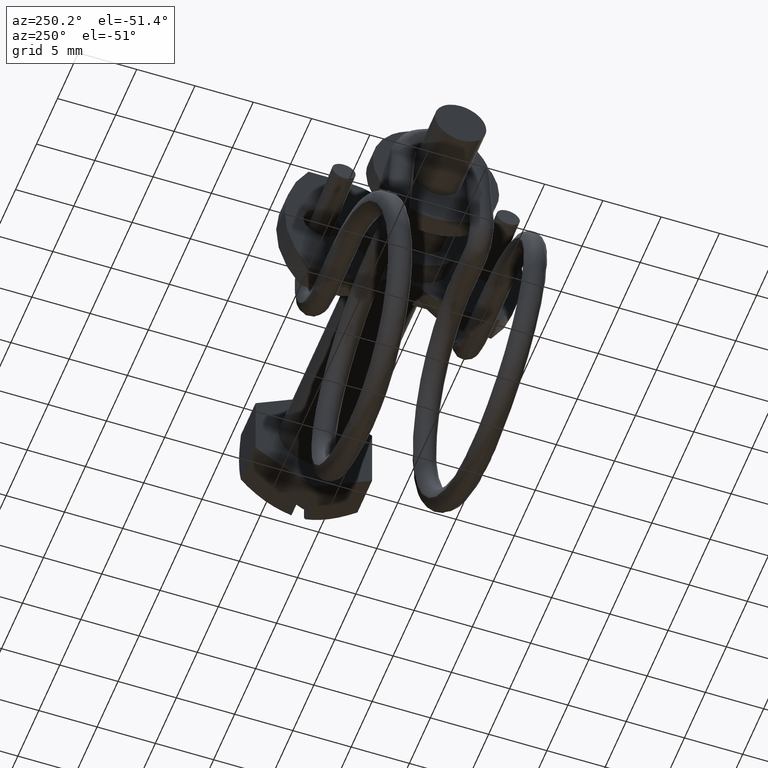
[diagram: clean part render]
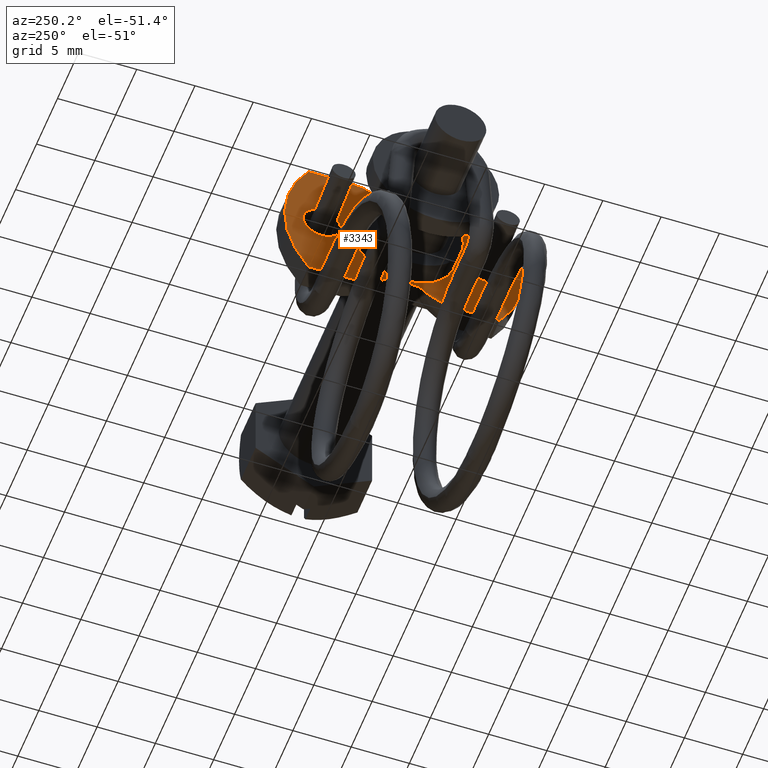
[diagram: same view with one face highlighted and labeled with its STEP entity id]
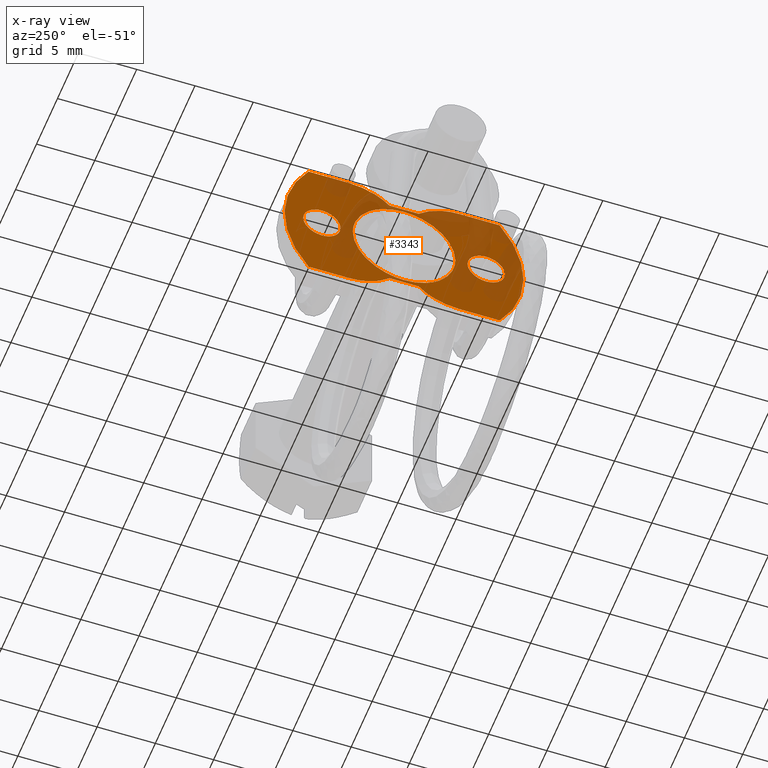
[diagram: x-ray of the same camera — body ghosted, the highlighted face saturated]
A machine part, auxiliary view. The second image highlights one B-rep face of the part: STEP entity #3343.
The next image is the same camera in x-ray: the body ghosted, the highlighted face saturated — about 42% of this face is hidden behind the body in this view.
In plain terms, the highlighted face is a freeform B-spline surface patch.
Its self-contained STEP definition (entity closure, byte-faithful):
#1898=CARTESIAN_POINT('',(-21.499999999993651,3.028760035763291,3.191647107271392));
#1899=VERTEX_POINT('',#1898);
#1905=CARTESIAN_POINT('',(-21.499999999993651,4.399999999990440,-0.000000631922418));
#1906=VERTEX_POINT('',#1905);
#1907=CARTESIAN_POINT('',(-21.499999999993651,3.028760035763291,3.191647107271392));
#1908=CARTESIAN_POINT('',(-21.499999999993658,3.231144374039922,2.999628103542814));
#1909=CARTESIAN_POINT('',(-21.499999999993630,3.629886403084383,2.541715071496983));
#1910=CARTESIAN_POINT('',(-21.499999999993669,4.082483317857596,1.733486091462298));
#1911=CARTESIAN_POINT('',(-21.499999999993630,4.345989014751261,0.855538412882844));
#1912=CARTESIAN_POINT('',(-21.499999999993712,4.400021167596801,0.269679902594492));
#1913=CARTESIAN_POINT('',(-21.499999999993651,4.399999999990440,-0.000000631922418));
#1914=B_SPLINE_CURVE_WITH_KNOTS('',3,(#1907,#1908,#1909,#1910,#1911,#1912,#1913),.UNSPECIFIED.,.F.,.U.,(4,1,1,1,4),(7.061145E-009,0.836941257166106,1.813365054003239,2.761906942217631,3.570950183323700),.UNSPECIFIED.);
#1915=EDGE_CURVE('',#1899,#1906,#1914,.T.);
#1917=CARTESIAN_POINT('',(-21.499999999993651,0.0,-4.399999999990485));
#1918=VERTEX_POINT('',#1917);
#1919=CARTESIAN_POINT('',(-21.499999999993651,4.399999999990440,-0.000000631922418));
#1920=CARTESIAN_POINT('',(-21.499999999993609,4.400064265808273,-0.323980634681141));
#1921=CARTESIAN_POINT('',(-21.499999999993658,4.338082211598675,-0.881912632195506));
#1922=CARTESIAN_POINT('',(-21.499999999993669,4.118833041719807,-1.589000091697338));
#1923=CARTESIAN_POINT('',(-21.499999999993609,3.841267555268010,-2.175847566948655));
#1924=CARTESIAN_POINT('',(-21.499999999993651,3.453671949586131,-2.763767000918469));
#1925=CARTESIAN_POINT('',(-21.499999999993729,2.929897138989269,-3.313894707756234));
#1926=CARTESIAN_POINT('',(-21.499999999993580,2.274308231325987,-3.793902882237972));
#1927=CARTESIAN_POINT('',(-21.499999999993751,1.607937395023837,-4.119140912803093));
#1928=CARTESIAN_POINT('',(-21.499999999993740,0.827920694959569,-4.345319868044837));
#1929=CARTESIAN_POINT('',(-21.499999999993459,0.305980779780192,-4.400049938494714));
#1930=CARTESIAN_POINT('',(-21.499999999993651,0.0,-4.399999999990485));
#1931=B_SPLINE_CURVE_WITH_KNOTS('',3,(#1919,#1920,#1921,#1922,#1923,#1924,#1925,#1926,#1927,#1928,#1929,#1930),.UNSPECIFIED.,.F.,.U.,(4,1,1,1,1,1,1,1,1,4),(5.143054E-009,0.971929552997772,1.673889898674869,2.213857444963700,2.915810668343717,3.779751093421619,4.481702296178790,5.345651141131864,5.993610477324595,6.911546848471422),.UNSPECIFIED.);
#1932=EDGE_CURVE('',#1906,#1918,#1931,.T.);
#1934=CARTESIAN_POINT('',(-21.499999999993651,-3.028760035763307,-3.191647107271410));
#1935=VERTEX_POINT('',#1934);
#1936=CARTESIAN_POINT('',(-21.499999999993651,0.0,-4.399999999990485));
#1937=CARTESIAN_POINT('',(-21.499999999993651,-0.365386089976504,-4.400096530133643));
#1938=CARTESIAN_POINT('',(-21.499999999993609,-0.939488540594578,-4.328049485103051));
#1939=CARTESIAN_POINT('',(-21.499999999993712,-1.717612933337087,-4.069915601996796));
#1940=CARTESIAN_POINT('',(-21.499999999993570,-2.385398168362902,-3.726906996575091));
#1941=CARTESIAN_POINT('',(-21.499999999993669,-2.814236053005788,-3.395279954111090));
#1942=CARTESIAN_POINT('',(-21.499999999993651,-3.028760035763307,-3.191647107271410));
#1943=B_SPLINE_CURVE_WITH_KNOTS('',3,(#1936,#1937,#1938,#1939,#1940,#1941,#1942),.UNSPECIFIED.,.F.,.U.,(4,1,1,1,4),(3.917212E-009,1.096129981736374,1.722484704050342,2.453238150085420,3.340579730583830),.UNSPECIFIED.);
#1944=EDGE_CURVE('',#1918,#1935,#1943,.T.);
#1978=CARTESIAN_POINT('',(-21.499999999993651,-4.399999999990439,0.000000631922320));
#1979=VERTEX_POINT('',#1978);
#1980=CARTESIAN_POINT('',(-21.499999999993651,-3.028760035763307,-3.191647107271410));
#1981=CARTESIAN_POINT('',(-21.499999999993651,-3.237903377242442,-2.993237300060410));
#1982=CARTESIAN_POINT('',(-21.499999999993619,-3.519103814336334,-2.668147580963868));
#1983=CARTESIAN_POINT('',(-21.499999999993680,-3.859380655542725,-2.134301546131174));
#1984=CARTESIAN_POINT('',(-21.499999999993619,-4.086522451901833,-1.664281068920047));
#1985=CARTESIAN_POINT('',(-21.499999999993658,-4.326999888720761,-0.939182082812085));
#1986=CARTESIAN_POINT('',(-21.499999999993669,-4.400126620978177,-0.381288290883124));
#1987=CARTESIAN_POINT('',(-21.499999999993651,-4.399999999990439,0.000000631922320));
#1988=B_SPLINE_CURVE_WITH_KNOTS('',3,(#1980,#1981,#1982,#1983,#1984,#1985,#1986,#1987),.UNSPECIFIED.,.F.,.U.,(4,1,1,1,1,4),(7.061074E-009,0.864839405579081,1.283313797119955,1.897065310084990,2.427129091176764,3.570950183323611),.UNSPECIFIED.);
#1989=EDGE_CURVE('',#1935,#1979,#1988,.T.);
#1991=CARTESIAN_POINT('',(-21.499999999993651,0.0,4.399999999990485));
#1992=VERTEX_POINT('',#1991);
#1993=CARTESIAN_POINT('',(-21.499999999993651,-4.399999999990439,0.000000631922320));
#1994=CARTESIAN_POINT('',(-21.499999999993651,-4.400140867226282,0.395988126888458));
#1995=CARTESIAN_POINT('',(-21.499999999993669,-4.304575548636752,1.097852641872235));
#1996=CARTESIAN_POINT('',(-21.499999999993630,-3.934055645356486,2.041132048872964));
#1997=CARTESIAN_POINT('',(-21.499999999993712,-3.426017988750273,2.811658056393247));
#1998=CARTESIAN_POINT('',(-21.499999999993531,-2.782273699467610,3.447540904774648));
#1999=CARTESIAN_POINT('',(-21.499999999993861,-2.069753375674498,3.911065736208791));
#2000=CARTESIAN_POINT('',(-21.499999999993289,-1.368758067761032,4.201404244983155));
#2001=CARTESIAN_POINT('',(-21.499999999994309,-0.683944401437627,4.364022590086315));
#2002=CARTESIAN_POINT('',(-21.499999999992941,-0.233983331341538,4.400014072047083));
#2003=CARTESIAN_POINT('',(-21.499999999993651,0.0,4.399999999990485));
#2004=B_SPLINE_CURVE_WITH_KNOTS('',3,(#1993,#1994,#1995,#1996,#1997,#1998,#1999,#2000,#2001,#2002,#2003),.UNSPECIFIED.,.F.,.U.,(4,1,1,1,1,1,1,1,4),(5.144861E-009,1.187916968531619,2.105864420295835,3.023804070825212,3.941741391915951,4.805681607240055,5.561638666922110,6.209594775066055,6.911546848471462),.UNSPECIFIED.);
#2005=EDGE_CURVE('',#1979,#1992,#2004,.T.);
#2007=CARTESIAN_POINT('',(-21.499999999993651,0.0,4.399999999990485));
#2008=CARTESIAN_POINT('',(-21.499999999993630,0.226184244561410,4.400012465598985));
#2009=CARTESIAN_POINT('',(-21.499999999993669,0.661149698153269,4.366385672108972));
#2010=CARTESIAN_POINT('',(-21.499999999993641,1.324218957012963,4.214367044352838));
#2011=CARTESIAN_POINT('',(-21.499999999993669,1.940424112297776,3.968524952554124));
#2012=CARTESIAN_POINT('',(-21.499999999993548,2.526039693320711,3.622369274977165));
#2013=CARTESIAN_POINT('',(-21.499999999993751,2.864700818389615,3.347351458788948));
#2014=CARTESIAN_POINT('',(-21.499999999993651,3.028760035763291,3.191647107271392));
#2015=B_SPLINE_CURVE_WITH_KNOTS('',3,(#2007,#2008,#2009,#2010,#2011,#2012,#2013,#2014),.UNSPECIFIED.,.F.,.U.,(4,1,1,1,1,4),(3.916811E-009,0.678554334756446,1.304918588251394,2.035661146253804,2.662025399748700,3.340579730583823),.UNSPECIFIED.);
#2016=EDGE_CURVE('',#1992,#1899,#2015,.T.);
#2080=CARTESIAN_POINT('',(-21.500000000008750,-5.948632759179517,-1.160598889464561));
#2081=VERTEX_POINT('',#2080);
#2087=CARTESIAN_POINT('',(-21.500000000008750,-7.050000000000180,-1.600000000000000));
#2088=VERTEX_POINT('',#2087);
#2089=CARTESIAN_POINT('',(-21.500000000008750,-7.050000000000180,-1.600000000000000));
#2090=CARTESIAN_POINT('',(-21.500000000008772,-6.936116305065754,-1.600014717445248));
#2091=CARTESIAN_POINT('',(-21.500000000008750,-6.702029042028117,-1.574910481850029));
#2092=CARTESIAN_POINT('',(-21.500000000008690,-6.316018893066023,-1.444338060200522));
#2093=CARTESIAN_POINT('',(-21.500000000008772,-6.072482003413295,-1.278271224937493));
#2094=CARTESIAN_POINT('',(-21.500000000008750,-5.948632759179517,-1.160598889464561));
#2095=B_SPLINE_CURVE_WITH_KNOTS('',3,(#2089,#2090,#2091,#2092,#2093,#2094),.UNSPECIFIED.,.F.,.U.,(4,1,1,4),(0.000000010747524,0.341651083655934,0.702280505624498,1.214756245571025),.UNSPECIFIED.);
#2096=EDGE_CURVE('',#2088,#2081,#2095,.T.);
#2098=CARTESIAN_POINT('',(-21.500000000008750,-8.650000000000095,-0.000000523993984));
#2099=VERTEX_POINT('',#2098);
#2100=CARTESIAN_POINT('',(-21.500000000008750,-8.650000000000095,-0.000000523993984));
#2101=CARTESIAN_POINT('',(-21.500000000008779,-8.650005635819277,-0.091627297138676));
#2102=CARTESIAN_POINT('',(-21.500000000008718,-8.632532349553188,-0.294522170174449));
#2103=CARTESIAN_POINT('',(-21.500000000008779,-8.544645689694846,-0.604766613806654));
#2104=CARTESIAN_POINT('',(-21.500000000008729,-8.404943099460519,-0.866097710571394));
#2105=CARTESIAN_POINT('',(-21.500000000008718,-8.215335335873812,-1.109067755936232));
#2106=CARTESIAN_POINT('',(-21.500000000008860,-8.009137751088696,-1.293660539362214));
#2107=CARTESIAN_POINT('',(-21.500000000008551,-7.732166313622659,-1.457364570523043));
#2108=CARTESIAN_POINT('',(-21.500000000009120,-7.423049576224517,-1.570110300789646));
#2109=CARTESIAN_POINT('',(-21.500000000008558,-7.180902922838312,-1.600034274679570));
#2110=CARTESIAN_POINT('',(-21.500000000008750,-7.050000000000180,-1.600000000000000));
#2111=B_SPLINE_CURVE_WITH_KNOTS('',3,(#2100,#2101,#2102,#2103,#2104,#2105,#2106,#2107,#2108,#2109,#2110),.UNSPECIFIED.,.F.,.U.,(4,1,1,1,1,1,1,1,4),(0.000000049530615,0.274882690027346,0.608686980774523,0.962119545177681,1.158471404242804,1.531526648373993,1.786791173662595,2.120589367790436,2.513289597270593),.UNSPECIFIED.);
#2112=EDGE_CURVE('',#2099,#2088,#2111,.T.);
#2114=CARTESIAN_POINT('',(-21.500000000008750,-8.151367240820843,1.160598889464561));
#2115=VERTEX_POINT('',#2114);
#2116=CARTESIAN_POINT('',(-21.500000000008750,-8.151367240820843,1.160598889464561));
#2117=CARTESIAN_POINT('',(-21.500000000008789,-8.224961562555830,1.090773927553841));
#2118=CARTESIAN_POINT('',(-21.500000000008651,-8.358802787641265,0.937062590241436));
#2119=CARTESIAN_POINT('',(-21.500000000008772,-8.502127732302272,0.690333787878120));
#2120=CARTESIAN_POINT('',(-21.500000000008740,-8.617684799624133,0.378706919869933));
#2121=CARTESIAN_POINT('',(-21.500000000008740,-8.650051070167574,0.148796522648121));
#2122=CARTESIAN_POINT('',(-21.500000000008750,-8.650000000000095,-0.000000523993984));
#2123=B_SPLINE_CURVE_WITH_KNOTS('',3,(#2116,#2117,#2118,#2119,#2120,#2121,#2122),.UNSPECIFIED.,.F.,.U.,(4,1,1,1,4),(0.000000013232264,0.304343513421896,0.608693329804053,0.852160684700377,1.298534120829163),.UNSPECIFIED.);
#2124=EDGE_CURVE('',#2115,#2099,#2123,.T.);
#2164=CARTESIAN_POINT('',(-21.500000000008750,-7.050000000000180,1.600000000000000));
#2165=VERTEX_POINT('',#2164);
#2166=CARTESIAN_POINT('',(-21.500000000008750,-7.050000000000180,1.600000000000000));
#2167=CARTESIAN_POINT('',(-21.500000000008740,-7.246167706028402,1.600183406048621));
#2168=CARTESIAN_POINT('',(-21.500000000008729,-7.511763033093236,1.550517398353613));
#2169=CARTESIAN_POINT('',(-21.500000000008779,-7.880088355681615,1.380208905588413));
#2170=CARTESIAN_POINT('',(-21.500000000008740,-8.050431649168980,1.256451963742596));
#2171=CARTESIAN_POINT('',(-21.500000000008750,-8.151367240820843,1.160598889464561));
#2172=B_SPLINE_CURVE_WITH_KNOTS('',3,(#2166,#2167,#2168,#2169,#2170,#2171),.UNSPECIFIED.,.F.,.U.,(4,1,1,4),(0.000000010747751,0.588404300361680,0.797183159463317,1.214756245571024),.UNSPECIFIED.);
#2173=EDGE_CURVE('',#2165,#2115,#2172,.T.);
#2175=CARTESIAN_POINT('',(-21.500000000008750,-5.450000000000266,0.000000523993990));
#2176=VERTEX_POINT('',#2175);
#2177=CARTESIAN_POINT('',(-21.500000000008750,-5.450000000000266,0.000000523993990));
#2178=CARTESIAN_POINT('',(-21.500000000008779,-5.449980323006501,0.124352856150202));
#2179=CARTESIAN_POINT('',(-21.500000000008718,-5.482177964105039,0.399245909390203));
#2180=CARTESIAN_POINT('',(-21.500000000008761,-5.624744562056488,0.762257578651268));
#2181=CARTESIAN_POINT('',(-21.500000000008740,-5.831197736015880,1.051502705663112));
#2182=CARTESIAN_POINT('',(-21.500000000008772,-6.050045983749170,1.259871013954092));
#2183=CARTESIAN_POINT('',(-21.500000000008740,-6.269542761275718,1.404580243866293));
#2184=CARTESIAN_POINT('',(-21.500000000008761,-6.598477524942573,1.552863170808253));
#2185=CARTESIAN_POINT('',(-21.500000000008740,-6.860168352468678,1.600153770671261));
#2186=CARTESIAN_POINT('',(-21.500000000008750,-7.050000000000180,1.600000000000000));
#2187=B_SPLINE_CURVE_WITH_KNOTS('',3,(#2177,#2178,#2179,#2180,#2181,#2182,#2183,#2184,#2185,#2186),.UNSPECIFIED.,.F.,.U.,(4,1,1,1,1,1,1,4),(0.000000049530478,0.373060724996832,0.824676078640128,1.158471404243089,1.433348703811193,1.727882994012495,1.943873526509014,2.513289597270584),.UNSPECIFIED.);
#2188=EDGE_CURVE('',#2176,#2165,#2187,.T.);
#2190=CARTESIAN_POINT('',(-21.500000000008750,-5.948632759179517,-1.160598889464561));
#2191=CARTESIAN_POINT('',(-21.500000000008779,-5.855402090580072,-1.072163713065023));
#2192=CARTESIAN_POINT('',(-21.500000000008740,-5.707804537214073,-0.893665910267591));
#2193=CARTESIAN_POINT('',(-21.500000000008761,-5.570961805168702,-0.627902483811605));
#2194=CARTESIAN_POINT('',(-21.500000000008718,-5.475890153368029,-0.338141395480162));
#2195=CARTESIAN_POINT('',(-21.500000000008761,-5.449963589024832,-0.135268212390012));
#2196=CARTESIAN_POINT('',(-21.500000000008750,-5.450000000000266,0.000000523993990));
#2197=B_SPLINE_CURVE_WITH_KNOTS('',3,(#2190,#2191,#2192,#2193,#2194,#2195,#2196),.UNSPECIFIED.,.F.,.U.,(4,1,1,1,4),(0.000000013232385,0.385502957389503,0.689840804241681,0.892740099123041,1.298534120829168),.UNSPECIFIED.);
#2198=EDGE_CURVE('',#2081,#2176,#2197,.T.);
#2285=CARTESIAN_POINT('',(-21.500000000008750,8.151367240820871,-1.160598889464559));
#2286=VERTEX_POINT('',#2285);
#2292=CARTESIAN_POINT('',(-21.500000000008750,7.050000000000209,-1.600000000000000));
#2293=VERTEX_POINT('',#2292);
#2294=CARTESIAN_POINT('',(-21.500000000008750,7.050000000000209,-1.600000000000000));
#2295=CARTESIAN_POINT('',(-21.500000000008740,7.220838030331773,-1.600088763888688));
#2296=CARTESIAN_POINT('',(-21.500000000008740,7.480168593653868,-1.558051837798496));
#2297=CARTESIAN_POINT('',(-21.500000000008779,7.853880248217978,-1.398546221822311));
#2298=CARTESIAN_POINT('',(-21.500000000008750,8.045845777011266,-1.260811738718704));
#2299=CARTESIAN_POINT('',(-21.500000000008750,8.151367240820871,-1.160598889464559));
#2300=B_SPLINE_CURVE_WITH_KNOTS('',3,(#2294,#2295,#2296,#2297,#2298,#2299),.UNSPECIFIED.,.F.,.U.,(4,1,1,4),(0.000000010748052,0.512475361912078,0.778200246752040,1.214756245571025),.UNSPECIFIED.);
#2301=EDGE_CURVE('',#2293,#2286,#2300,.T.);
#2303=CARTESIAN_POINT('',(-21.500000000008750,5.450000000000295,-0.000000523993983));
#2304=VERTEX_POINT('',#2303);
#2305=CARTESIAN_POINT('',(-21.500000000008750,5.450000000000295,-0.000000523993983));
#2306=CARTESIAN_POINT('',(-21.500000000008779,5.449949761116272,-0.143995338917543));
#2307=CARTESIAN_POINT('',(-21.500000000008701,5.482922803283228,-0.386131371008857));
#2308=CARTESIAN_POINT('',(-21.500000000008789,5.599323246598499,-0.693470275981788));
#2309=CARTESIAN_POINT('',(-21.500000000008740,5.742986829828954,-0.936509690496187));
#2310=CARTESIAN_POINT('',(-21.500000000008630,5.960340403145209,-1.191714370035802));
#2311=CARTESIAN_POINT('',(-21.500000000008821,6.248339444172510,-1.402587275072894));
#2312=CARTESIAN_POINT('',(-21.500000000008761,6.631161202119340,-1.561110477039813));
#2313=CARTESIAN_POINT('',(-21.500000000008740,6.892912259386207,-1.600076172099008));
#2314=CARTESIAN_POINT('',(-21.500000000008750,7.050000000000209,-1.600000000000000));
#2315=B_SPLINE_CURVE_WITH_KNOTS('',3,(#2305,#2306,#2307,#2308,#2309,#2310,#2311,#2312,#2313,#2314),.UNSPECIFIED.,.F.,.U.,(4,1,1,1,1,1,1,4),(0.000000049531298,0.431970289244915,0.726498817419955,0.981763109419822,1.276264867201679,1.727882994012718,2.042051425335720,2.513289597270589),.UNSPECIFIED.);
#2316=EDGE_CURVE('',#2304,#2293,#2315,.T.);
#2318=CARTESIAN_POINT('',(-21.500000000008750,5.948632759179546,1.160598889464562));
#2319=VERTEX_POINT('',#2318);
#2320=CARTESIAN_POINT('',(-21.500000000008750,5.948632759179546,1.160598889464562));
#2321=CARTESIAN_POINT('',(-21.500000000008779,5.811162019713845,1.030332015576797));
#2322=CARTESIAN_POINT('',(-21.500000000008750,5.620060579596210,0.770071366995990));
#2323=CARTESIAN_POINT('',(-21.500000000008740,5.476352171211264,0.358438404498566));
#2324=CARTESIAN_POINT('',(-21.500000000008750,5.449982425125557,0.114973563886217));
#2325=CARTESIAN_POINT('',(-21.500000000008750,5.450000000000295,-0.000000523993983));
#2326=B_SPLINE_CURVE_WITH_KNOTS('',3,(#2320,#2321,#2322,#2323,#2324,#2325),.UNSPECIFIED.,.F.,.U.,(4,1,1,4),(0.000000013232185,0.568114947430157,0.953610567220366,1.298534120829162),.UNSPECIFIED.);
#2327=EDGE_CURVE('',#2319,#2304,#2326,.T.);
#2367=CARTESIAN_POINT('',(-21.500000000008750,7.050000000000209,1.600000000000000));
#2368=VERTEX_POINT('',#2367);
#2369=CARTESIAN_POINT('',(-21.500000000008750,7.050000000000209,1.600000000000000));
#2370=CARTESIAN_POINT('',(-21.500000000008800,6.879162470310980,1.600089319046070));
#2371=CARTESIAN_POINT('',(-21.500000000008662,6.613503302350758,1.557027582620342));
#2372=CARTESIAN_POINT('',(-21.500000000008900,6.240556342781234,1.395226127060481));
#2373=CARTESIAN_POINT('',(-21.500000000008690,6.049571090786818,1.256445041353471));
#2374=CARTESIAN_POINT('',(-21.500000000008750,5.948632759179546,1.160598889464562));
#2375=B_SPLINE_CURVE_WITH_KNOTS('',3,(#2369,#2370,#2371,#2372,#2373,#2374),.UNSPECIFIED.,.F.,.U.,(4,1,1,4),(0.000000010748103,0.512475361911959,0.797183159463254,1.214756245571026),.UNSPECIFIED.);
#2376=EDGE_CURVE('',#2368,#2319,#2375,.T.);
#2378=CARTESIAN_POINT('',(-21.500000000008750,8.650000000000123,0.000000523993990));
#2379=VERTEX_POINT('',#2378);
#2380=CARTESIAN_POINT('',(-21.500000000008750,8.650000000000123,0.000000523993990));
#2381=CARTESIAN_POINT('',(-21.500000000008718,8.650067997813617,0.157089037201562));
#2382=CARTESIAN_POINT('',(-21.500000000008779,8.614038063217750,0.399206908417223));
#2383=CARTESIAN_POINT('',(-21.500000000008718,8.484393715728700,0.729217923189871));
#2384=CARTESIAN_POINT('',(-21.500000000008789,8.310089296751405,1.008291244417055));
#2385=CARTESIAN_POINT('',(-21.500000000008718,8.039653839333415,1.278759772048948));
#2386=CARTESIAN_POINT('',(-21.500000000008789,7.698762104880237,1.480238071924427));
#2387=CARTESIAN_POINT('',(-21.500000000008711,7.357614145891460,1.581415326370300));
#2388=CARTESIAN_POINT('',(-21.500000000008718,7.141625868472953,1.600002397497428));
#2389=CARTESIAN_POINT('',(-21.500000000008750,7.050000000000209,1.600000000000000));
#2390=B_SPLINE_CURVE_WITH_KNOTS('',3,(#2380,#2381,#2382,#2383,#2384,#2385,#2386,#2387,#2388,#2389),.UNSPECIFIED.,.F.,.U.,(4,1,1,1,1,1,1,4),(0.000000049530535,0.471238727549444,0.726498817419279,1.060295947064869,1.452994290713865,1.865331655201845,2.238407770976581,2.513289597270584),.UNSPECIFIED.);
#2391=EDGE_CURVE('',#2379,#2368,#2390,.T.);
#2393=CARTESIAN_POINT('',(-21.500000000008750,8.151367240820871,-1.160598889464559));
#2394=CARTESIAN_POINT('',(-21.500000000008750,8.234777441929913,-1.081467609203916));
#2395=CARTESIAN_POINT('',(-21.500000000008761,8.393230654398149,-0.894751368056503));
#2396=CARTESIAN_POINT('',(-21.500000000008718,8.592896184822930,-0.507158710669714));
#2397=CARTESIAN_POINT('',(-21.500000000008779,8.650135484640581,-0.189386741949464));
#2398=CARTESIAN_POINT('',(-21.500000000008750,8.650000000000123,0.000000523993990));
#2399=B_SPLINE_CURVE_WITH_KNOTS('',3,(#2393,#2394,#2395,#2396,#2397,#2398),.UNSPECIFIED.,.F.,.U.,(4,1,1,4),(0.000000013232456,0.344923566830323,0.730419186620763,1.298534120829167),.UNSPECIFIED.);
#2400=EDGE_CURVE('',#2286,#2379,#2399,.T.);
#2585=CARTESIAN_POINT('',(-21.500000000008750,4.725000000000000,-6.149999999999890));
#2586=VERTEX_POINT('',#2585);
#2592=CARTESIAN_POINT('',(-21.500000000008750,8.200000000000150,-6.149999999999810));
#2593=VERTEX_POINT('',#2592);
#2594=CARTESIAN_POINT('',(-21.500000000008750,4.725000000000000,-6.149999999999890));
#2595=CARTESIAN_POINT('',(-21.500000000008750,8.200000000000150,-6.149999999999810));
#2596=QUASI_UNIFORM_CURVE('',1,(#2594,#2595),.UNSPECIFIED.,.F.,.U.);
#2597=EDGE_CURVE('',#2586,#2593,#2596,.T.);
#2622=CARTESIAN_POINT('',(-21.500000000008750,1.249999999999772,-4.699999999999901));
#2623=VERTEX_POINT('',#2622);
#2637=CARTESIAN_POINT('',(-21.500000000008750,1.249999999999772,-4.699999999999901));
#2638=CARTESIAN_POINT('',(-21.500000000008619,1.547289250349785,-5.000607559619729));
#2639=CARTESIAN_POINT('',(-21.500000000008900,2.028214502482645,-5.374257623891413));
#2640=CARTESIAN_POINT('',(-21.500000000008669,2.799009290097743,-5.771204824350063));
#2641=CARTESIAN_POINT('',(-21.500000000008839,3.617811671766869,-6.060662153918107));
#2642=CARTESIAN_POINT('',(-21.500000000008811,4.302224590028781,-6.150110470356870));
#2643=CARTESIAN_POINT('',(-21.500000000008750,4.725000000000000,-6.149999999999890));
#2644=B_SPLINE_CURVE_WITH_KNOTS('',3,(#2637,#2638,#2639,#2640,#2641,#2642,#2643),.UNSPECIFIED.,.F.,.U.,(4,1,1,1,4),(6.885524E-009,1.268295636463311,1.811849400341575,2.596978769383094,3.865274398961100),.UNSPECIFIED.);
#2645=EDGE_CURVE('',#2623,#2586,#2644,.T.);
#2664=CARTESIAN_POINT('',(-21.500000000008750,-1.249999999999632,-4.699999999999910));
#2665=VERTEX_POINT('',#2664);
#2685=CARTESIAN_POINT('',(-21.500000000008750,-1.249999999999632,-4.699999999999910));
#2686=CARTESIAN_POINT('',(-21.500000000008750,1.249999999999772,-4.699999999999901));
#2687=QUASI_UNIFORM_CURVE('',1,(#2685,#2686),.UNSPECIFIED.,.F.,.U.);
#2688=EDGE_CURVE('',#2665,#2623,#2687,.T.);
#2726=CARTESIAN_POINT('',(-21.500000000008750,-4.724999999999881,-6.149999999999810));
#2727=VERTEX_POINT('',#2726);
#2728=CARTESIAN_POINT('',(-21.500000000008750,-4.724999999999881,-6.149999999999810));
#2729=CARTESIAN_POINT('',(-21.500000000008740,-4.433091003293026,-6.150024077254744));
#2730=CARTESIAN_POINT('',(-21.500000000008761,-3.829146441898893,-6.095766681216468));
#2731=CARTESIAN_POINT('',(-21.500000000008690,-2.982424687862555,-5.857002583208160));
#2732=CARTESIAN_POINT('',(-21.500000000008860,-2.083726131493893,-5.418453287121968));
#2733=CARTESIAN_POINT('',(-21.500000000008630,-1.540219046558212,-4.993435627204171));
#2734=CARTESIAN_POINT('',(-21.500000000008750,-1.249999999999632,-4.699999999999910));
#2735=B_SPLINE_CURVE_WITH_KNOTS('',3,(#2728,#2729,#2730,#2731,#2732,#2733,#2734),.UNSPECIFIED.,.F.,.U.,(4,1,1,1,4),(6.884197E-009,0.875726075610354,1.811849400341024,2.627177542821377,3.865274398961097),.UNSPECIFIED.);
#2736=EDGE_CURVE('',#2727,#2665,#2735,.T.);
#2773=CARTESIAN_POINT('',(-21.500000000008750,-8.200000000000150,-6.149999999999800));
#2774=VERTEX_POINT('',#2773);
#2780=CARTESIAN_POINT('',(-21.500000000008750,-8.200000000000150,-6.149999999999800));
#2781=CARTESIAN_POINT('',(-21.500000000008750,-4.724999999999881,-6.149999999999810));
#2782=QUASI_UNIFORM_CURVE('',1,(#2780,#2781),.UNSPECIFIED.,.F.,.U.);
#2783=EDGE_CURVE('',#2774,#2727,#2782,.T.);
#2821=CARTESIAN_POINT('',(-21.500000000008750,-8.199999999999900,6.150000000000090));
#2822=VERTEX_POINT('',#2821);
#2828=CARTESIAN_POINT('',(-21.500000000008750,-8.199999999999900,6.150000000000090));
#2829=CARTESIAN_POINT('',(-21.500000000008811,-8.571064882905688,5.655338873568178));
#2830=CARTESIAN_POINT('',(-21.500000000008651,-9.196062119007992,4.642618224085243));
#2831=CARTESIAN_POINT('',(-21.500000000008839,-9.879444100438995,2.929644399065090));
#2832=CARTESIAN_POINT('',(-21.500000000008711,-10.199968886661660,1.357248157361515));
#2833=CARTESIAN_POINT('',(-21.500000000008740,-10.266449746107689,0.034274791697057));
#2834=CARTESIAN_POINT('',(-21.500000000008871,-10.209849401467309,-1.150653744426264));
#2835=CARTESIAN_POINT('',(-21.500000000008232,-10.002193077792359,-2.390866875075449));
#2836=CARTESIAN_POINT('',(-21.500000000009258,-9.617626805480079,-3.605230338131586));
#2837=CARTESIAN_POINT('',(-21.500000000008011,-9.060169788466038,-4.862765342306322));
#2838=CARTESIAN_POINT('',(-21.500000000010392,-8.571073981467691,-5.655343134498530));
#2839=CARTESIAN_POINT('',(-21.500000000008750,-8.200000000000150,-6.149999999999800));
#2840=B_SPLINE_CURVE_WITH_KNOTS('',3,(#2828,#2829,#2830,#2831,#2832,#2833,#2834,#2835,#2836,#2837,#2838,#2839),.UNSPECIFIED.,.F.,.U.,(4,1,1,1,1,1,1,1,1,4),(0.000000013894537,1.855094346048755,3.555598912063260,5.513756750082795,6.647411002232888,7.523437617996111,9.069350162910196,10.409144538888130,11.336692995401140,13.191786622319521),.UNSPECIFIED.);
#2841=EDGE_CURVE('',#2822,#2774,#2840,.T.);
#2859=CARTESIAN_POINT('',(-21.500000000008750,-4.724999999999881,6.150000000000000));
#2860=VERTEX_POINT('',#2859);
#2866=CARTESIAN_POINT('',(-21.500000000008750,-4.724999999999881,6.150000000000000));
#2867=CARTESIAN_POINT('',(-21.500000000008750,-8.199999999999900,6.150000000000090));
#2868=QUASI_UNIFORM_CURVE('',1,(#2866,#2867),.UNSPECIFIED.,.F.,.U.);
#2869=EDGE_CURVE('',#2860,#2822,#2868,.T.);
#2890=CARTESIAN_POINT('',(-21.500000000008750,-1.249999999999660,4.700000000000100));
#2891=VERTEX_POINT('',#2890);
#2905=CARTESIAN_POINT('',(-21.500000000008750,-1.249999999999660,4.700000000000100));
#2906=CARTESIAN_POINT('',(-21.500000000008850,-1.455314219152672,4.907504026340674));
#2907=CARTESIAN_POINT('',(-21.500000000008630,-1.810596070666910,5.207323204029896));
#2908=CARTESIAN_POINT('',(-21.500000000008839,-2.391693838700790,5.570813833161449));
#2909=CARTESIAN_POINT('',(-21.500000000008701,-2.976287860268463,5.844999235373521));
#2910=CARTESIAN_POINT('',(-21.500000000008811,-3.768770707470423,6.084422000808479));
#2911=CARTESIAN_POINT('',(-21.500000000008729,-4.372691560916605,6.150062655205661));
#2912=CARTESIAN_POINT('',(-21.500000000008750,-4.724999999999881,6.150000000000000));
#2913=B_SPLINE_CURVE_WITH_KNOTS('',3,(#2905,#2906,#2907,#2908,#2909,#2910,#2911,#2912),.UNSPECIFIED.,.F.,.U.,(4,1,1,1,1,4),(6.883329E-009,0.875726075609681,1.389086143175293,2.053425005503862,2.808363271648619,3.865274398961082),.UNSPECIFIED.);
#2914=EDGE_CURVE('',#2891,#2860,#2913,.T.);
#2933=CARTESIAN_POINT('',(-21.500000000008750,1.249999999999802,4.700000000000100));
#2934=VERTEX_POINT('',#2933);
#2954=CARTESIAN_POINT('',(-21.500000000008750,1.249999999999802,4.700000000000100));
#2955=CARTESIAN_POINT('',(-21.500000000008750,-1.249999999999660,4.700000000000100));
#2956=QUASI_UNIFORM_CURVE('',1,(#2954,#2955),.UNSPECIFIED.,.F.,.U.);
#2957=EDGE_CURVE('',#2934,#2891,#2956,.T.);
#3268=CARTESIAN_POINT('',(-21.500000000008701,-11.273976060339290,6.764384976160304));
#3269=CARTESIAN_POINT('',(-21.500000000008701,11.273966346272299,6.764384976160303));
#3270=CARTESIAN_POINT('',(-21.500000000008701,-11.273976060339290,-6.764385306071812));
#3271=CARTESIAN_POINT('',(-21.500000000008701,11.273966346272299,-6.764385306071812));
#3272=B_SPLINE_SURFACE_WITH_KNOTS('',1,1,((#3268,#3270),(#3269,#3271)),.UNSPECIFIED.,.F.,.F.,.U.,(2,2),(2,2),(0.0,22.547942406611590),(0.0,13.528770282232120),.UNSPECIFIED.);
#3273=CARTESIAN_POINT('',(-21.500000000008750,8.200000000000001,6.149999999999910));
#3274=VERTEX_POINT('',#3273);
#3275=CARTESIAN_POINT('',(-21.500000000008750,4.725000000000000,6.150000000000000));
#3276=VERTEX_POINT('',#3275);
#3277=CARTESIAN_POINT('',(-21.500000000008750,8.200000000000001,6.149999999999910));
#3278=CARTESIAN_POINT('',(-21.500000000008750,4.725000000000000,6.150000000000000));
#3279=QUASI_UNIFORM_CURVE('',1,(#3277,#3278),.UNSPECIFIED.,.F.,.U.);
#3280=EDGE_CURVE('',#3274,#3276,#3279,.T.);
#3281=ORIENTED_EDGE('',*,*,#3280,.F.);
#3282=CARTESIAN_POINT('',(-21.500000000008750,8.200000000000150,-6.149999999999810));
#3283=CARTESIAN_POINT('',(-21.500000000008729,8.674223727352072,-5.517985769437705));
#3284=CARTESIAN_POINT('',(-21.500000000008828,9.362052363005667,-4.337742332095116));
#3285=CARTESIAN_POINT('',(-21.500000000008690,9.930517599194497,-2.674116895016780));
#3286=CARTESIAN_POINT('',(-21.500000000008932,10.220727361300559,-1.153051421084910));
#3287=CARTESIAN_POINT('',(-21.500000000008288,10.287035026929651,0.310808173427065));
#3288=CARTESIAN_POINT('',(-21.500000000009521,10.136834485295010,1.662825388568557));
#3289=CARTESIAN_POINT('',(-21.500000000006949,9.885082705195085,2.769249962042009));
#3290=CARTESIAN_POINT('',(-21.500000000009461,9.528818677741418,3.847150567313160));
#3291=CARTESIAN_POINT('',(-21.500000000009091,8.975920192822322,5.014263878654107));
#3292=CARTESIAN_POINT('',(-21.500000000007809,8.467967732397867,5.792730293836685));
#3293=CARTESIAN_POINT('',(-21.500000000008750,8.200000000000001,6.149999999999910));
#3294=B_SPLINE_CURVE_WITH_KNOTS('',3,(#3282,#3283,#3284,#3285,#3286,#3287,#3288,#3289,#3290,#3291,#3292,#3293),.UNSPECIFIED.,.F.,.U.,(4,1,1,1,1,1,1,1,1,4),(0.000000013915349,2.370398503883010,4.070903257951470,5.256102646309238,7.008134068378878,8.450986944543683,9.327003156180615,10.409144538891820,11.851996720644740,13.191786622319270),.UNSPECIFIED.);
#3295=EDGE_CURVE('',#2593,#3274,#3294,.T.);
#3296=ORIENTED_EDGE('',*,*,#3295,.F.);
#3297=ORIENTED_EDGE('',*,*,#2597,.F.);
#3298=ORIENTED_EDGE('',*,*,#2645,.F.);
#3299=ORIENTED_EDGE('',*,*,#2688,.F.);
#3300=ORIENTED_EDGE('',*,*,#2736,.F.);
#3301=ORIENTED_EDGE('',*,*,#2783,.F.);
#3302=ORIENTED_EDGE('',*,*,#2841,.F.);
#3303=ORIENTED_EDGE('',*,*,#2869,.F.);
#3304=ORIENTED_EDGE('',*,*,#2914,.F.);
#3305=ORIENTED_EDGE('',*,*,#2957,.F.);
#3306=CARTESIAN_POINT('',(-21.500000000008750,4.725000000000000,6.150000000000000));
#3307=CARTESIAN_POINT('',(-21.500000000008729,4.493487288338989,6.150006726647598));
#3308=CARTESIAN_POINT('',(-21.500000000008789,3.990193974287758,6.114200239308046));
#3309=CARTESIAN_POINT('',(-21.500000000008662,3.320723370150365,5.960656942437981));
#3310=CARTESIAN_POINT('',(-21.500000000008779,2.661369134419136,5.709134379469922));
#3311=CARTESIAN_POINT('',(-21.500000000008999,1.969235890325211,5.333544608018895));
#3312=CARTESIAN_POINT('',(-21.500000000008491,1.497776995537180,4.950453783113321));
#3313=CARTESIAN_POINT('',(-21.500000000008750,1.249999999999802,4.700000000000100));
#3314=B_SPLINE_CURVE_WITH_KNOTS('',3,(#3306,#3307,#3308,#3309,#3310,#3311,#3312,#3313),.UNSPECIFIED.,.F.,.U.,(4,1,1,1,1,4),(6.884942E-009,0.694540346783518,1.509876320035943,2.053425005504694,2.808363271649101,3.865274398961053),.UNSPECIFIED.);
#3315=EDGE_CURVE('',#3276,#2934,#3314,.T.);
#3316=ORIENTED_EDGE('',*,*,#3315,.F.);
#3317=EDGE_LOOP('',(#3281,#3296,#3297,#3298,#3299,#3300,#3301,#3302,#3303,#3304,#3305,#3316));
#3318=FACE_OUTER_BOUND('',#3317,.T.);
#3319=ORIENTED_EDGE('',*,*,#2316,.T.);
#3320=ORIENTED_EDGE('',*,*,#2301,.T.);
#3321=ORIENTED_EDGE('',*,*,#2400,.T.);
#3322=ORIENTED_EDGE('',*,*,#2391,.T.);
#3323=ORIENTED_EDGE('',*,*,#2376,.T.);
#3324=ORIENTED_EDGE('',*,*,#2327,.T.);
#3325=EDGE_LOOP('',(#3319,#3320,#3321,#3322,#3323,#3324));
#3326=FACE_BOUND('',#3325,.T.);
#3327=ORIENTED_EDGE('',*,*,#2112,.T.);
#3328=ORIENTED_EDGE('',*,*,#2096,.T.);
#3329=ORIENTED_EDGE('',*,*,#2198,.T.);
#3330=ORIENTED_EDGE('',*,*,#2188,.T.);
#3331=ORIENTED_EDGE('',*,*,#2173,.T.);
#3332=ORIENTED_EDGE('',*,*,#2124,.T.);
#3333=EDGE_LOOP('',(#3327,#3328,#3329,#3330,#3331,#3332));
#3334=FACE_BOUND('',#3333,.T.);
#3335=ORIENTED_EDGE('',*,*,#1932,.F.);
#3336=ORIENTED_EDGE('',*,*,#1915,.F.);
#3337=ORIENTED_EDGE('',*,*,#2016,.F.);
#3338=ORIENTED_EDGE('',*,*,#2005,.F.);
#3339=ORIENTED_EDGE('',*,*,#1989,.F.);
#3340=ORIENTED_EDGE('',*,*,#1944,.F.);
#3341=EDGE_LOOP('',(#3335,#3336,#3337,#3338,#3339,#3340));
#3342=FACE_BOUND('',#3341,.T.);
#3343=ADVANCED_FACE('',(#3318,#3326,#3334,#3342),#3272,.T.);